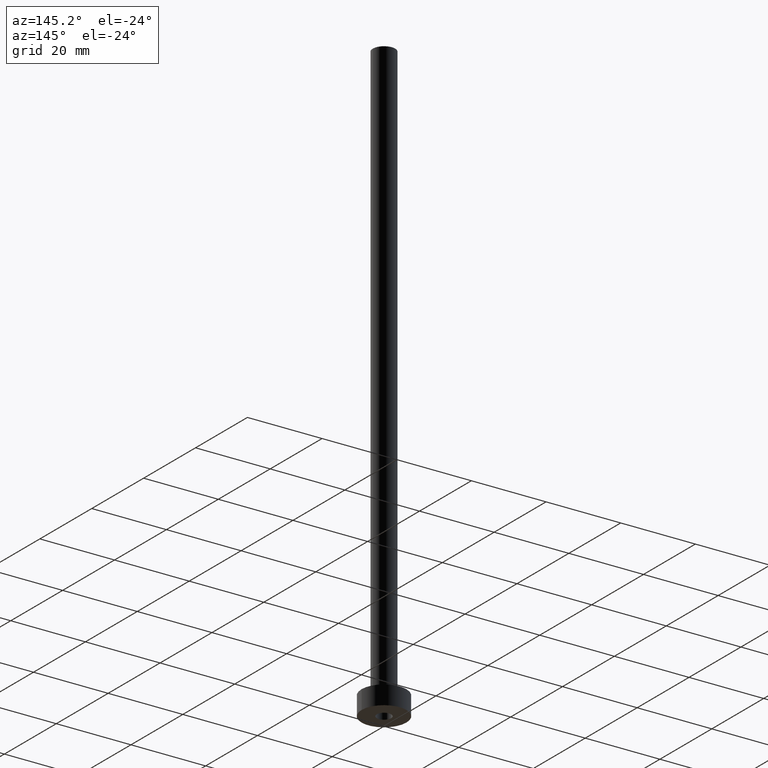
[diagram: clean part render]
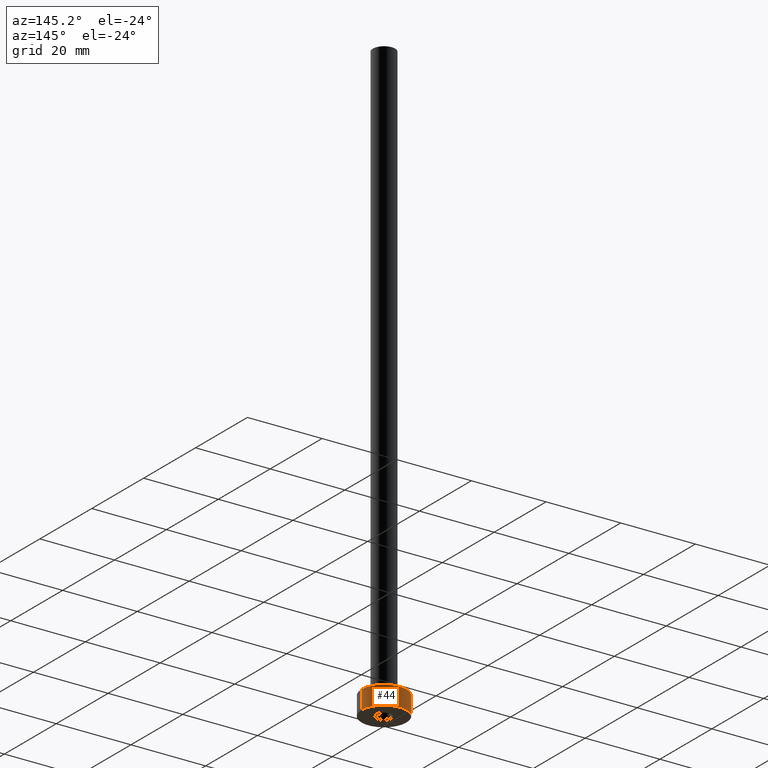
[diagram: same view with one face highlighted and labeled with its STEP entity id]
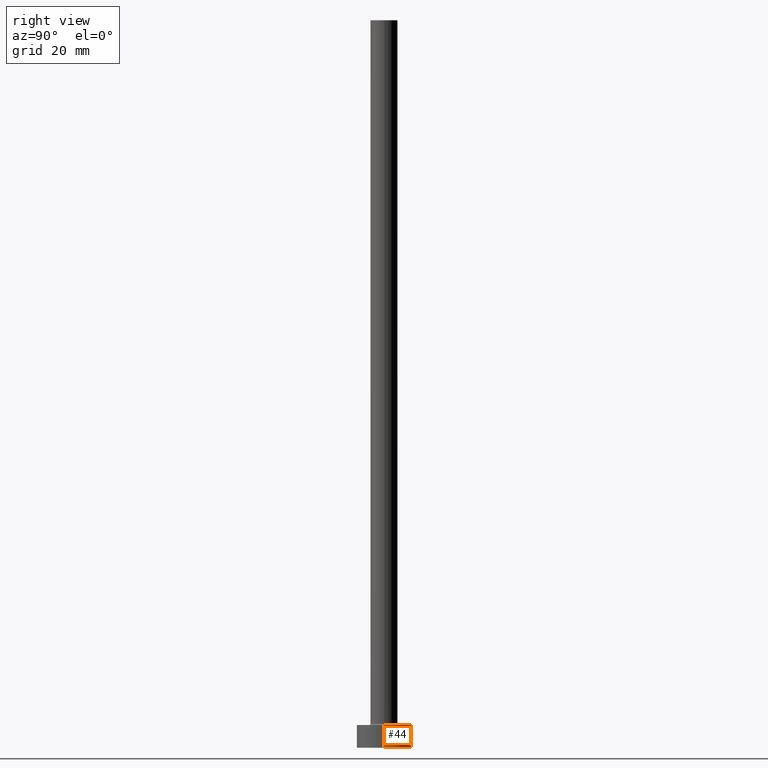
[diagram: same view with one face highlighted and labeled with its STEP entity id]
A machine part, auxiliary view. The second image highlights one B-rep face of the part: STEP entity #44.
A second angle (right view) of the same face is appended — the face is thin or edge-on in the first view.
In plain terms, the highlighted cylindrical surface (edge-blend (fillet) strip) has radius 6 mm, axis along (-0, -0, -1).
Its self-contained STEP definition (entity closure, byte-faithful):
#6 = CARTESIAN_POINT ( 'NONE',  ( -6.000000000000000888, 0.000000000000000000, 5.000000000000000000 ) ) ;
#14 = EDGE_CURVE ( 'NONE', #417, #57, #37, .T. ) ;
#35 = CARTESIAN_POINT ( 'NONE',  ( 6.000000000000000888, 7.347880794884120722E-16, 5.000000000000000000 ) ) ;
#37 = LINE ( 'NONE', #35, #322 ) ;
#38 = DIRECTION ( 'NONE',  ( -0.000000000000000000, -0.000000000000000000, -1.000000000000000000 ) ) ;
#44 = ADVANCED_FACE ( 'NONE', ( #369 ), #198, .T. ) ;
#57 = VERTEX_POINT ( 'NONE', #188 ) ;
#65 = CARTESIAN_POINT ( 'NONE',  ( -6.000000000000000888, 0.000000000000000000, 5.000000000000000000 ) ) ;
#71 = CARTESIAN_POINT ( 'NONE',  ( 0.000000000000000000, 0.000000000000000000, 5.000000000000000000 ) ) ;
#92 = ORIENTED_EDGE ( 'NONE', *, *, #14, .T. ) ;
#108 = EDGE_LOOP ( 'NONE', ( #458, #92, #227, #199 ) ) ;
#111 = DIRECTION ( 'NONE',  ( 0.000000000000000000, 0.000000000000000000, 1.000000000000000000 ) ) ;
#152 = DIRECTION ( 'NONE',  ( 1.000000000000000000, 0.000000000000000000, 0.000000000000000000 ) ) ;
#153 = DIRECTION ( 'NONE',  ( -0.000000000000000000, -0.000000000000000000, -1.000000000000000000 ) ) ;
#155 = CARTESIAN_POINT ( 'NONE',  ( 0.000000000000000000, 0.000000000000000000, 5.000000000000000000 ) ) ;
#184 = CARTESIAN_POINT ( 'NONE',  ( 6.000000000000000888, 7.347880794884120722E-16, 5.000000000000000000 ) ) ;
#187 = CARTESIAN_POINT ( 'NONE',  ( 0.000000000000000000, 0.000000000000000000, 0.000000000000000000 ) ) ;
#188 = CARTESIAN_POINT ( 'NONE',  ( 6.000000000000000888, 7.347880794884120722E-16, 0.000000000000000000 ) ) ;
#198 = CYLINDRICAL_SURFACE ( 'NONE', #407, 6.000000000000000888 ) ;
#199 = ORIENTED_EDGE ( 'NONE', *, *, #262, .F. ) ;
#219 = DIRECTION ( 'NONE',  ( 0.000000000000000000, 0.000000000000000000, 1.000000000000000000 ) ) ;
#227 = ORIENTED_EDGE ( 'NONE', *, *, #436, .T. ) ;
#255 = LINE ( 'NONE', #6, #284 ) ;
#256 = DIRECTION ( 'NONE',  ( -1.000000000000000000, 0.000000000000000000, 0.000000000000000000 ) ) ;
#262 = EDGE_CURVE ( 'NONE', #328, #312, #255, .T. ) ;
#283 = DIRECTION ( 'NONE',  ( -0.000000000000000000, -0.000000000000000000, -1.000000000000000000 ) ) ;
#284 = VECTOR ( 'NONE', #38, 1000.000000000000000 ) ;
#290 = CARTESIAN_POINT ( 'NONE',  ( -6.000000000000000888, 0.000000000000000000, 0.000000000000000000 ) ) ;
#300 = CIRCLE ( 'NONE', #342, 6.000000000000000888 ) ;
#312 = VERTEX_POINT ( 'NONE', #290 ) ;
#322 = VECTOR ( 'NONE', #283, 1000.000000000000000 ) ;
#328 = VERTEX_POINT ( 'NONE', #65 ) ;
#342 = AXIS2_PLACEMENT_3D ( 'NONE', #71, #219, #383 ) ;
#346 = EDGE_CURVE ( 'NONE', #417, #328, #300, .T. ) ;
#369 = FACE_OUTER_BOUND ( 'NONE', #108, .T. ) ;
#382 = AXIS2_PLACEMENT_3D ( 'NONE', #187, #111, #152 ) ;
#383 = DIRECTION ( 'NONE',  ( 1.000000000000000000, 0.000000000000000000, 0.000000000000000000 ) ) ;
#407 = AXIS2_PLACEMENT_3D ( 'NONE', #155, #153, #256 ) ;
#417 = VERTEX_POINT ( 'NONE', #184 ) ;
#426 = CIRCLE ( 'NONE', #382, 6.000000000000000888 ) ;
#436 = EDGE_CURVE ( 'NONE', #57, #312, #426, .T. ) ;
#458 = ORIENTED_EDGE ( 'NONE', *, *, #346, .F. ) ;